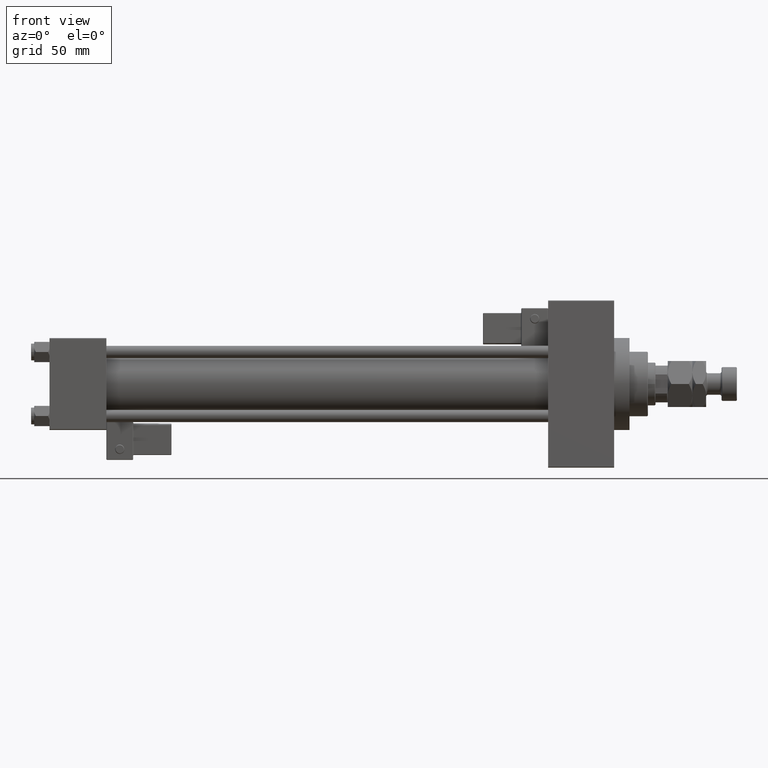
[diagram: clean part render]
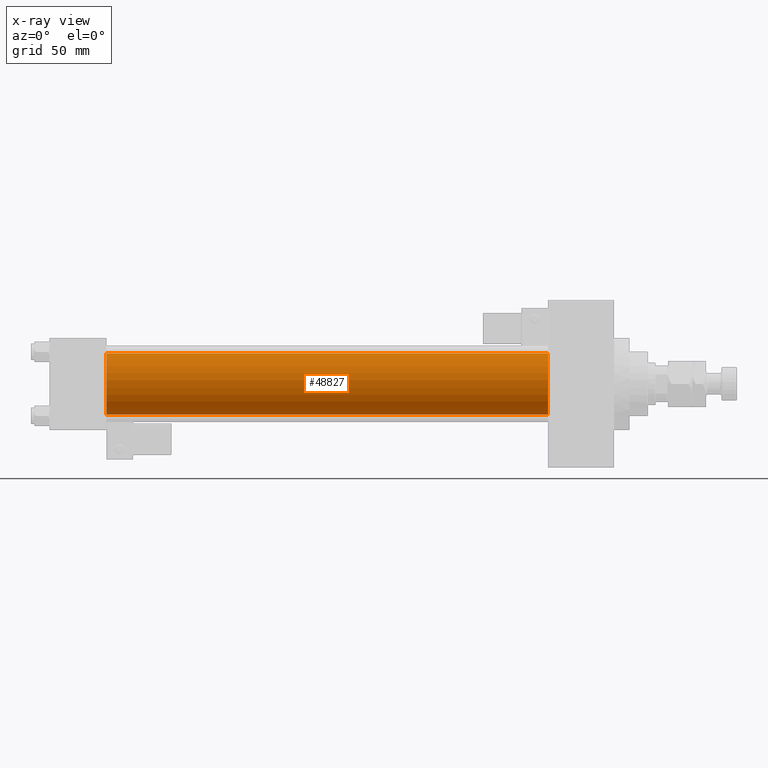
[diagram: x-ray — body ghosted, one internal face saturated and labeled with its STEP entity id]
A machine part, front view, then the same camera in x-ray: the body is ghosted and one INTERNAL B-rep face — a face not visible from any outside direction — is saturated and labeled: STEP entity #48827.
In plain terms, the highlighted cylindrical surface (edge-blend (fillet) strip) has radius 20 mm, axis along (-1, -0, -0).
Its self-contained STEP definition (entity closure, byte-faithful):
#1364 = CARTESIAN_POINT ( 'NONE',  ( 37.00000000000000000, -1.527916156705042519E-16, -20.00000000000000000 ) ) ;
#1754 = VERTEX_POINT ( 'NONE', #10681 ) ;
#2523 = VERTEX_POINT ( 'NONE', #6834 ) ;
#3541 = EDGE_CURVE ( 'NONE', #1754, #2523, #3921, .T. ) ;
#3921 = CIRCLE ( 'NONE', #10587, 20.00000000000000000 ) ;
#6269 = DIRECTION ( 'NONE',  ( 1.000000000000000000, 0.000000000000000000, 0.000000000000000000 ) ) ;
#6834 = CARTESIAN_POINT ( 'NONE',  ( 324.9999999999999432, -1.527916156705042519E-16, -20.00000000000000000 ) ) ;
#8351 = EDGE_CURVE ( 'NONE', #38853, #37860, #35544, .T. ) ;
#8417 = CARTESIAN_POINT ( 'NONE',  ( 37.00000000000000000, -2.602085213965210642E-15, 20.00000000000000000 ) ) ;
#9992 = DIRECTION ( 'NONE',  ( -1.000000000000000000, -0.000000000000000000, -0.000000000000000000 ) ) ;
#10587 = AXIS2_PLACEMENT_3D ( 'NONE', #41850, #6269, #48074 ) ;
#10681 = CARTESIAN_POINT ( 'NONE',  ( 324.9999999999999432, -2.602085213965210642E-15, 20.00000000000000000 ) ) ;
#12099 = DIRECTION ( 'NONE',  ( -1.000000000000000000, -0.000000000000000000, -0.000000000000000000 ) ) ;
#12865 = CARTESIAN_POINT ( 'NONE',  ( 324.9999999999999432, -2.602085213965210642E-15, 0.000000000000000000 ) ) ;
#13176 = AXIS2_PLACEMENT_3D ( 'NONE', #12865, #9992, #25829 ) ;
#16475 = VECTOR ( 'NONE', #34229, 1000.000000000000000 ) ;
#21465 = AXIS2_PLACEMENT_3D ( 'NONE', #22763, #38340, #46149 ) ;
#21824 = ORIENTED_EDGE ( 'NONE', *, *, #43841, .T. ) ;
#22763 = CARTESIAN_POINT ( 'NONE',  ( 37.00000000000000000, -2.602085213965210642E-15, 0.000000000000000000 ) ) ;
#25829 = DIRECTION ( 'NONE',  ( 0.000000000000000000, 0.000000000000000000, 1.000000000000000000 ) ) ;
#26986 = ORIENTED_EDGE ( 'NONE', *, *, #8351, .F. ) ;
#27950 = ORIENTED_EDGE ( 'NONE', *, *, #37485, .F. ) ;
#28967 = FACE_OUTER_BOUND ( 'NONE', #50826, .T. ) ;
#34229 = DIRECTION ( 'NONE',  ( -1.000000000000000000, -0.000000000000000000, -0.000000000000000000 ) ) ;
#35544 = CIRCLE ( 'NONE', #21465, 20.00000000000000000 ) ;
#36279 = VECTOR ( 'NONE', #12099, 1000.000000000000000 ) ;
#37485 = EDGE_CURVE ( 'NONE', #1754, #38853, #47976, .T. ) ;
#37632 = LINE ( 'NONE', #49601, #16475 ) ;
#37860 = VERTEX_POINT ( 'NONE', #1364 ) ;
#38340 = DIRECTION ( 'NONE',  ( 1.000000000000000000, 0.000000000000000000, 0.000000000000000000 ) ) ;
#38853 = VERTEX_POINT ( 'NONE', #8417 ) ;
#40665 = ORIENTED_EDGE ( 'NONE', *, *, #3541, .T. ) ;
#41850 = CARTESIAN_POINT ( 'NONE',  ( 324.9999999999999432, -2.602085213965210642E-15, 0.000000000000000000 ) ) ;
#43841 = EDGE_CURVE ( 'NONE', #2523, #37860, #37632, .T. ) ;
#45602 = CYLINDRICAL_SURFACE ( 'NONE', #13176, 20.00000000000000000 ) ;
#46149 = DIRECTION ( 'NONE',  ( 0.000000000000000000, 0.000000000000000000, -1.000000000000000000 ) ) ;
#47976 = LINE ( 'NONE', #48234, #36279 ) ;
#48074 = DIRECTION ( 'NONE',  ( 0.000000000000000000, 0.000000000000000000, -1.000000000000000000 ) ) ;
#48234 = CARTESIAN_POINT ( 'NONE',  ( 324.9999999999999432, -2.602085213965210642E-15, 20.00000000000000000 ) ) ;
#48827 = ADVANCED_FACE ( 'NONE', ( #28967 ), #45602, .F. ) ;
#49601 = CARTESIAN_POINT ( 'NONE',  ( 324.9999999999999432, -1.527916156705042519E-16, -20.00000000000000000 ) ) ;
#50826 = EDGE_LOOP ( 'NONE', ( #40665, #21824, #26986, #27950 ) ) ;